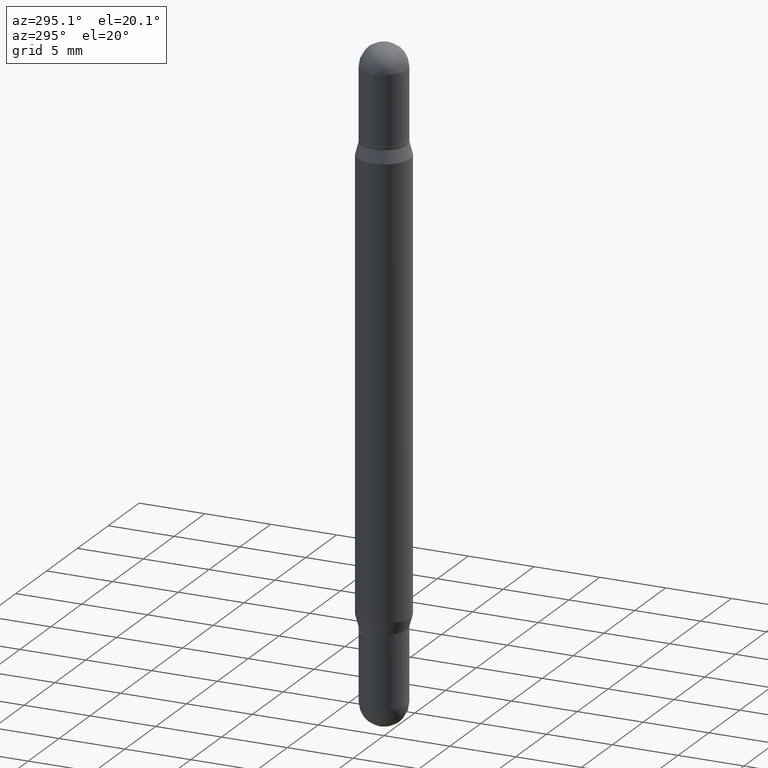
[diagram: clean part render]
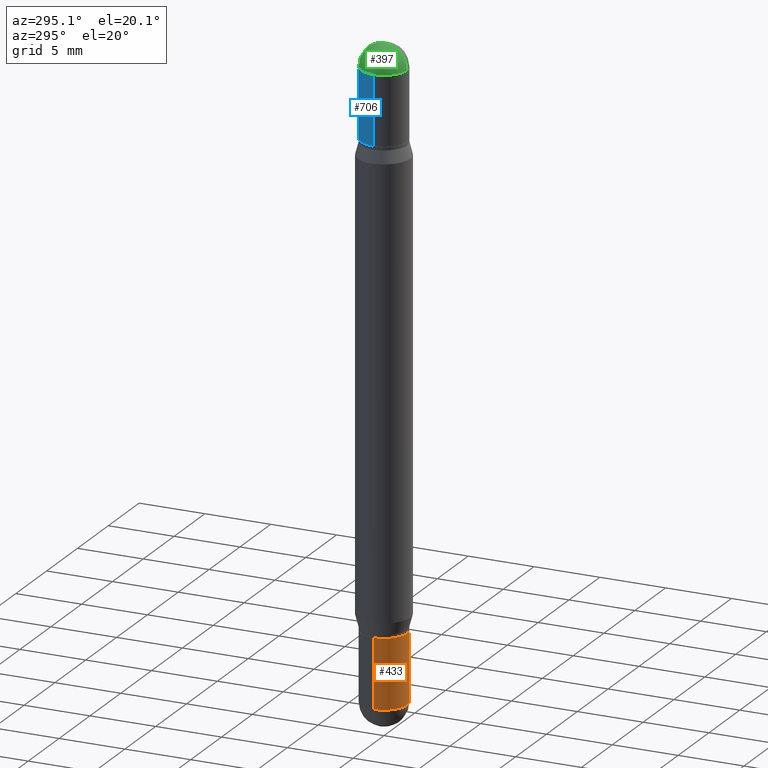
[diagram: same view with three faces highlighted in distinct colors, each labeled with its STEP entity id]
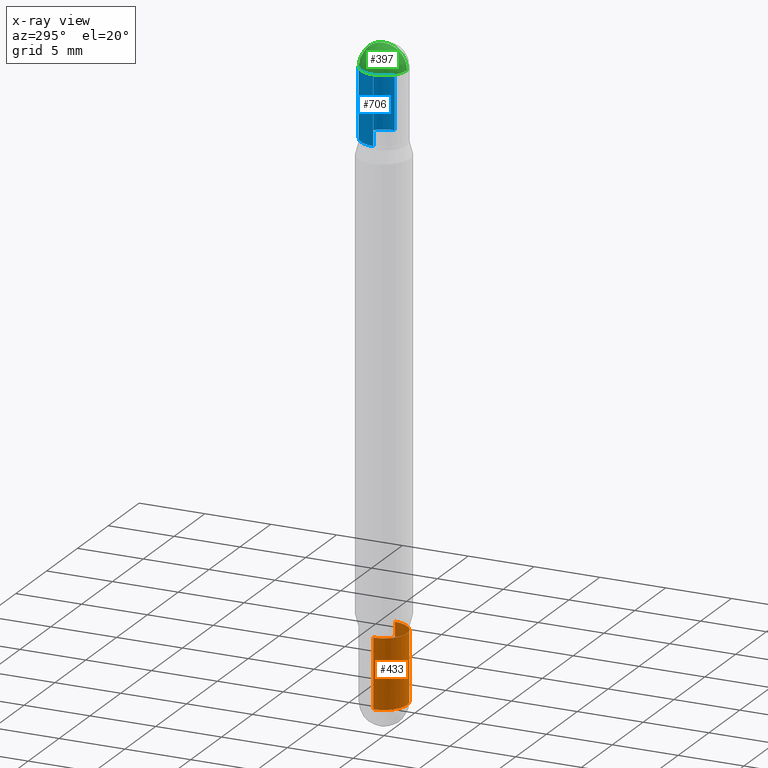
[diagram: x-ray of the same camera — body ghosted, the three highlighted faces saturated]
A machine part, auxiliary view with three faces highlighted in distinct colors.
The next image is the same camera in x-ray (body ghosted, the three faces saturated) — at least one of them is partly hidden behind the body in this view.
Their STEP definitions:

[orange] entity #433 — the highlighted cylindrical surface (edge-blend (fillet) strip) has radius 1.7501 mm, axis along (-0, 0, 1).
#10 = VECTOR ( 'NONE', #567, 39.37007874015748143 ) ;
#28 = CARTESIAN_POINT ( 'NONE',  ( 0.06890000000000007230, -4.811261284925842315E-16, 3.359685798523402771E-30 ) ) ;
#31 = VECTOR ( 'NONE', #719, 39.37007874015748143 ) ;
#46 = AXIS2_PLACEMENT_3D ( 'NONE', #949, #425, #81 ) ;
#51 = CARTESIAN_POINT ( 'NONE',  ( -0.06890000000000007230, 4.895639449387095418E-16, -3.389146277185633520E-30 ) ) ;
#81 = DIRECTION ( 'NONE',  ( 1.000000000000000000, -6.982962677686265922E-15, 4.876176775795935232E-29 ) ) ;
#104 = VERTEX_POINT ( 'NONE', #722 ) ;
#160 = VERTEX_POINT ( 'NONE', #798 ) ;
#204 = EDGE_CURVE ( 'NONE', #667, #104, #270, .T. ) ;
#221 = CARTESIAN_POINT ( 'NONE',  ( 4.139934141990817236E-29, -5.910728758527560286E-15, -1.692899999999999849 ) ) ;
#270 = LINE ( 'NONE', #28, #31 ) ;
#291 = DIRECTION ( 'NONE',  ( 1.000000000000000000, -6.982962677686273021E-15, 0.000000000000000000 ) ) ;
#298 = AXIS2_PLACEMENT_3D ( 'NONE', #451, #787, #1030 ) ;
#303 = EDGE_CURVE ( 'NONE', #160, #667, #843, .T. ) ;
#309 = EDGE_CURVE ( 'NONE', #430, #104, #439, .T. ) ;
#333 = ORIENTED_EDGE ( 'NONE', *, *, #309, .F. ) ;
#363 = AXIS2_PLACEMENT_3D ( 'NONE', #221, #729, #913 ) ;
#423 = ORIENTED_EDGE ( 'NONE', *, *, #942, .T. ) ;
#425 = DIRECTION ( 'NONE',  ( -2.445468806185136597E-29, 3.491481338843145583E-15, 1.000000000000000000 ) ) ;
#430 = VERTEX_POINT ( 'NONE', #590 ) ;
#433 = ADVANCED_FACE ( 'NONE', ( #684 ), #849, .T. ) ;
#439 = CIRCLE ( 'NONE', #363, 0.06890000000000007230 ) ;
#451 = CARTESIAN_POINT ( 'NONE',  ( 4.645412544229285965E-29, -6.632417951266439838E-15, -1.899600000000000177 ) ) ;
#489 = ORIENTED_EDGE ( 'NONE', *, *, #626, .F. ) ;
#561 = ORIENTED_EDGE ( 'NONE', *, *, #303, .T. ) ;
#567 = DIRECTION ( 'NONE',  ( -2.445468806185136877E-29, 3.491481338843145188E-15, 1.000000000000000000 ) ) ;
#590 = CARTESIAN_POINT ( 'NONE',  ( -0.06890000000000007230, -5.782009409958290915E-15, -1.692899999999999849 ) ) ;
#605 = VERTEX_POINT ( 'NONE', #1000 ) ;
#626 = EDGE_CURVE ( 'NONE', #605, #430, #755, .T. ) ;
#667 = VERTEX_POINT ( 'NONE', #899 ) ;
#680 = EDGE_LOOP ( 'NONE', ( #489, #423, #561, #848, #333 ) ) ;
#684 = FACE_OUTER_BOUND ( 'NONE', #680, .T. ) ;
#719 = DIRECTION ( 'NONE',  ( -2.445468806185136877E-29, 3.491481338843145188E-15, 1.000000000000000000 ) ) ;
#722 = CARTESIAN_POINT ( 'NONE',  ( 0.06890000000000007230, -6.391854887020144024E-15, -1.692899999999999849 ) ) ;
#724 = CARTESIAN_POINT ( 'NONE',  ( 4.645412544229285965E-29, -6.632417951266439838E-15, -1.899600000000000177 ) ) ;
#729 = DIRECTION ( 'NONE',  ( -2.445468806185136597E-29, 3.491481338843145583E-15, 1.000000000000000000 ) ) ;
#751 = DIRECTION ( 'NONE',  ( -2.445468806185136597E-29, 3.491481338843145583E-15, 1.000000000000000000 ) ) ;
#755 = LINE ( 'NONE', #51, #10 ) ;
#787 = DIRECTION ( 'NONE',  ( -2.445468806185136597E-29, 3.491481338843145583E-15, 1.000000000000000000 ) ) ;
#798 = CARTESIAN_POINT ( 'NONE',  ( -4.895639449386624073E-16, -0.06890000000000662261, -1.899599999999999955 ) ) ;
#843 = CIRCLE ( 'NONE', #906, 0.06890000000000007230 ) ;
#848 = ORIENTED_EDGE ( 'NONE', *, *, #204, .T. ) ;
#849 = CYLINDRICAL_SURFACE ( 'NONE', #46, 0.06890000000000007230 ) ;
#867 = CIRCLE ( 'NONE', #298, 0.06890000000000007230 ) ;
#899 = CARTESIAN_POINT ( 'NONE',  ( 0.06890000000000008618, -6.752699483389584195E-15, -1.899600000000000177 ) ) ;
#906 = AXIS2_PLACEMENT_3D ( 'NONE', #724, #751, #291 ) ;
#913 = DIRECTION ( 'NONE',  ( 1.000000000000000000, -6.982962677686258822E-15, 0.000000000000000000 ) ) ;
#942 = EDGE_CURVE ( 'NONE', #605, #160, #867, .T. ) ;
#949 = CARTESIAN_POINT ( 'NONE',  ( 0.000000000000000000, 0.000000000000000000, 0.000000000000000000 ) ) ;
#1000 = CARTESIAN_POINT ( 'NONE',  ( -0.06890000000000008618, -5.782009409958290915E-15, -1.899600000000000177 ) ) ;
#1030 = DIRECTION ( 'NONE',  ( 1.000000000000000000, -6.982962677686273021E-15, 0.000000000000000000 ) ) ;

[blue] entity #706 — the highlighted cylindrical surface (edge-blend (fillet) strip) has radius 1.7501 mm, axis along (-0, -0, -1).
#6 = VERTEX_POINT ( 'NONE', #720 ) ;
#45 = DIRECTION ( 'NONE',  ( 1.000000000000000000, -6.982962677686273021E-15, 0.000000000000000000 ) ) ;
#59 = DIRECTION ( 'NONE',  ( -2.445468806185136597E-29, -3.479614466977828254E-15, -1.000000000000000000 ) ) ;
#71 = CARTESIAN_POINT ( 'NONE',  ( -0.06890000000000007230, -1.383552485239108735E-16, -0.2756000000000001782 ) ) ;
#96 = ORIENTED_EDGE ( 'NONE', *, *, #671, .T. ) ;
#136 = CARTESIAN_POINT ( 'NONE',  ( 4.645412544229285965E-29, -2.514254054082095494E-16, -0.06889999999999990576 ) ) ;
#140 = LINE ( 'NONE', #487, #558 ) ;
#144 = CARTESIAN_POINT ( 'NONE',  ( 0.000000000000000000, -6.861301046879293370E-15, -1.968500000000000139 ) ) ;
#189 = EDGE_CURVE ( 'NONE', #1077, #434, #863, .T. ) ;
#222 = DIRECTION ( 'NONE',  ( -2.445468806185136877E-29, -3.479614466977828648E-15, -1.000000000000000000 ) ) ;
#230 = FACE_OUTER_BOUND ( 'NONE', #550, .T. ) ;
#260 = CARTESIAN_POINT ( 'NONE',  ( 0.06890000000000007230, -1.451787844225113236E-15, -0.2756000000000001782 ) ) ;
#264 = DIRECTION ( 'NONE',  ( 2.445468806185136597E-29, 3.479614466977828254E-15, 1.000000000000000000 ) ) ;
#276 = AXIS2_PLACEMENT_3D ( 'NONE', #136, #480, #823 ) ;
#356 = EDGE_CURVE ( 'NONE', #775, #673, #978, .T. ) ;
#434 = VERTEX_POINT ( 'NONE', #71 ) ;
#480 = DIRECTION ( 'NONE',  ( 2.445468806185136597E-29, 3.479614466977828254E-15, 1.000000000000000000 ) ) ;
#487 = CARTESIAN_POINT ( 'NONE',  ( 0.06890000000000007230, -7.342427175371877898E-15, -1.968500000000000139 ) ) ;
#502 = ORIENTED_EDGE ( 'NONE', *, *, #356, .F. ) ;
#550 = EDGE_LOOP ( 'NONE', ( #613, #502, #1029, #96, #959 ) ) ;
#558 = VECTOR ( 'NONE', #653, 39.37007874015748143 ) ;
#582 = CYLINDRICAL_SURFACE ( 'NONE', #1111, 0.06890000000000007230 ) ;
#613 = ORIENTED_EDGE ( 'NONE', *, *, #888, .F. ) ;
#617 = DIRECTION ( 'NONE',  ( 2.445468806185136597E-29, 3.479614466977828254E-15, 1.000000000000000000 ) ) ;
#653 = DIRECTION ( 'NONE',  ( -2.445468806185136877E-29, -3.479614466977828648E-15, -1.000000000000000000 ) ) ;
#671 = EDGE_CURVE ( 'NONE', #6, #1077, #140, .T. ) ;
#673 = VERTEX_POINT ( 'NONE', #831 ) ;
#682 = VECTOR ( 'NONE', #222, 39.37007874015748143 ) ;
#698 = AXIS2_PLACEMENT_3D ( 'NONE', #890, #617, #886 ) ;
#706 = ADVANCED_FACE ( 'NONE', ( #230 ), #582, .T. ) ;
#720 = CARTESIAN_POINT ( 'NONE',  ( 0.06890000000000008618, -1.092169689062953952E-15, -0.06889999999999990576 ) ) ;
#726 = LINE ( 'NONE', #1075, #682 ) ;
#775 = VERTEX_POINT ( 'NONE', #939 ) ;
#823 = DIRECTION ( 'NONE',  ( 1.000000000000000000, -6.982962677686265922E-15, 0.000000000000000000 ) ) ;
#831 = CARTESIAN_POINT ( 'NONE',  ( -0.06890000000000008618, -1.383552485239103558E-16, -0.06889999999999990576 ) ) ;
#844 = AXIS2_PLACEMENT_3D ( 'NONE', #871, #264, #1046 ) ;
#863 = CIRCLE ( 'NONE', #698, 0.06890000000000007230 ) ;
#871 = CARTESIAN_POINT ( 'NONE',  ( 4.645412544229285965E-29, -2.514254054082095494E-16, -0.06889999999999990576 ) ) ;
#886 = DIRECTION ( 'NONE',  ( 1.000000000000000000, -6.982962677686265922E-15, 0.000000000000000000 ) ) ;
#888 = EDGE_CURVE ( 'NONE', #673, #434, #726, .T. ) ;
#890 = CARTESIAN_POINT ( 'NONE',  ( 4.139934141990817236E-29, -9.706617157325289063E-16, -0.2756000000000001782 ) ) ;
#939 = CARTESIAN_POINT ( 'NONE',  ( 4.811261284926304785E-16, 0.06889999999999979474, -0.06890000000000015556 ) ) ;
#959 = ORIENTED_EDGE ( 'NONE', *, *, #189, .T. ) ;
#978 = CIRCLE ( 'NONE', #276, 0.06890000000000007230 ) ;
#984 = EDGE_CURVE ( 'NONE', #6, #775, #1038, .T. ) ;
#1029 = ORIENTED_EDGE ( 'NONE', *, *, #984, .F. ) ;
#1038 = CIRCLE ( 'NONE', #844, 0.06890000000000007230 ) ;
#1046 = DIRECTION ( 'NONE',  ( 1.000000000000000000, -6.982962677686265922E-15, 0.000000000000000000 ) ) ;
#1075 = CARTESIAN_POINT ( 'NONE',  ( -0.06890000000000007230, -6.388612734832834646E-15, -1.968500000000000139 ) ) ;
#1077 = VERTEX_POINT ( 'NONE', #260 ) ;
#1111 = AXIS2_PLACEMENT_3D ( 'NONE', #144, #59, #45 ) ;

[green] entity #397 — the highlighted spherical surface has radius 1.7501 mm.
#29 = VERTEX_POINT ( 'NONE', #895 ) ;
#44 = CIRCLE ( 'NONE', #677, 0.06890000000000007230 ) ;
#48 = CIRCLE ( 'NONE', #176, 0.06889999999999996128 ) ;
#92 = FACE_OUTER_BOUND ( 'NONE', #263, .T. ) ;
#136 = CARTESIAN_POINT ( 'NONE',  ( 4.645412544229285965E-29, -2.514254054082095494E-16, -0.06889999999999990576 ) ) ;
#176 = AXIS2_PLACEMENT_3D ( 'NONE', #660, #1090, #819 ) ;
#201 = DIRECTION ( 'NONE',  ( 1.000000000000000000, -6.982962677686265922E-15, 0.000000000000000000 ) ) ;
#238 = DIRECTION ( 'NONE',  ( 6.982962677686265922E-15, 1.000000000000000000, -3.469328003564922263E-15 ) ) ;
#250 = ORIENTED_EDGE ( 'NONE', *, *, #702, .F. ) ;
#255 = EDGE_CURVE ( 'NONE', #673, #29, #44, .T. ) ;
#263 = EDGE_LOOP ( 'NONE', ( #250, #715, #1005, #640 ) ) ;
#276 = AXIS2_PLACEMENT_3D ( 'NONE', #136, #480, #823 ) ;
#327 = DIRECTION ( 'NONE',  ( -1.000000000000000000, 6.982962677686265922E-15, 1.566701062080016245E-31 ) ) ;
#334 = DIRECTION ( 'NONE',  ( 1.000000000000000000, -6.982962677686265922E-15, -1.566701062080016683E-31 ) ) ;
#356 = EDGE_CURVE ( 'NONE', #775, #673, #978, .T. ) ;
#383 = AXIS2_PLACEMENT_3D ( 'NONE', #414, #327, #666 ) ;
#397 = ADVANCED_FACE ( 'NONE', ( #92 ), #869, .T. ) ;
#414 = CARTESIAN_POINT ( 'NONE',  ( 4.679918503997674770E-29, -2.020109070626143082E-16, -0.06889999999999990576 ) ) ;
#443 = CARTESIAN_POINT ( 'NONE',  ( 4.851357352610053575E-29, 4.195343793522055789E-17, 5.122214988120493535E-17 ) ) ;
#480 = DIRECTION ( 'NONE',  ( 2.445468806185136597E-29, 3.479614466977828254E-15, 1.000000000000000000 ) ) ;
#552 = DIRECTION ( 'NONE',  ( 2.445468806185136597E-29, 3.479614466977828254E-15, 1.000000000000000000 ) ) ;
#596 = AXIS2_PLACEMENT_3D ( 'NONE', #603, #334, #238 ) ;
#603 = CARTESIAN_POINT ( 'NONE',  ( 4.679918503997674770E-29, -2.020109070626143082E-16, -0.06889999999999990576 ) ) ;
#631 = CARTESIAN_POINT ( 'NONE',  ( 4.645412544229285965E-29, -2.514254054082095494E-16, -0.06889999999999990576 ) ) ;
#640 = ORIENTED_EDGE ( 'NONE', *, *, #255, .T. ) ;
#660 = CARTESIAN_POINT ( 'NONE',  ( 4.679918503997674770E-29, -2.020109070626143082E-16, -0.06889999999999990576 ) ) ;
#666 = DIRECTION ( 'NONE',  ( -6.982962677686265922E-15, -1.000000000000000000, 0.000000000000000000 ) ) ;
#673 = VERTEX_POINT ( 'NONE', #831 ) ;
#677 = AXIS2_PLACEMENT_3D ( 'NONE', #631, #552, #201 ) ;
#702 = EDGE_CURVE ( 'NONE', #1020, #29, #48, .T. ) ;
#709 = EDGE_CURVE ( 'NONE', #1020, #775, #1066, .T. ) ;
#715 = ORIENTED_EDGE ( 'NONE', *, *, #709, .T. ) ;
#775 = VERTEX_POINT ( 'NONE', #939 ) ;
#819 = DIRECTION ( 'NONE',  ( 6.860497997771530774E-15, 1.000000000000000000, 0.000000000000000000 ) ) ;
#823 = DIRECTION ( 'NONE',  ( 1.000000000000000000, -6.982962677686265922E-15, 0.000000000000000000 ) ) ;
#831 = CARTESIAN_POINT ( 'NONE',  ( -0.06890000000000008618, -1.383552485239103558E-16, -0.06889999999999990576 ) ) ;
#869 = SPHERICAL_SURFACE ( 'NONE', #596, 0.06889999999999996128 ) ;
#895 = CARTESIAN_POINT ( 'NONE',  ( -4.726883120464119841E-16, -0.06890000000000023883, -0.06889999999999966984 ) ) ;
#939 = CARTESIAN_POINT ( 'NONE',  ( 4.811261284926304785E-16, 0.06889999999999979474, -0.06890000000000015556 ) ) ;
#978 = CIRCLE ( 'NONE', #276, 0.06890000000000007230 ) ;
#1005 = ORIENTED_EDGE ( 'NONE', *, *, #356, .T. ) ;
#1020 = VERTEX_POINT ( 'NONE', #443 ) ;
#1066 = CIRCLE ( 'NONE', #383, 0.06889999999999996128 ) ;
#1090 = DIRECTION ( 'NONE',  ( 1.000000000000000000, -6.860497997771530774E-15, -5.827999781331232286E-31 ) ) ;